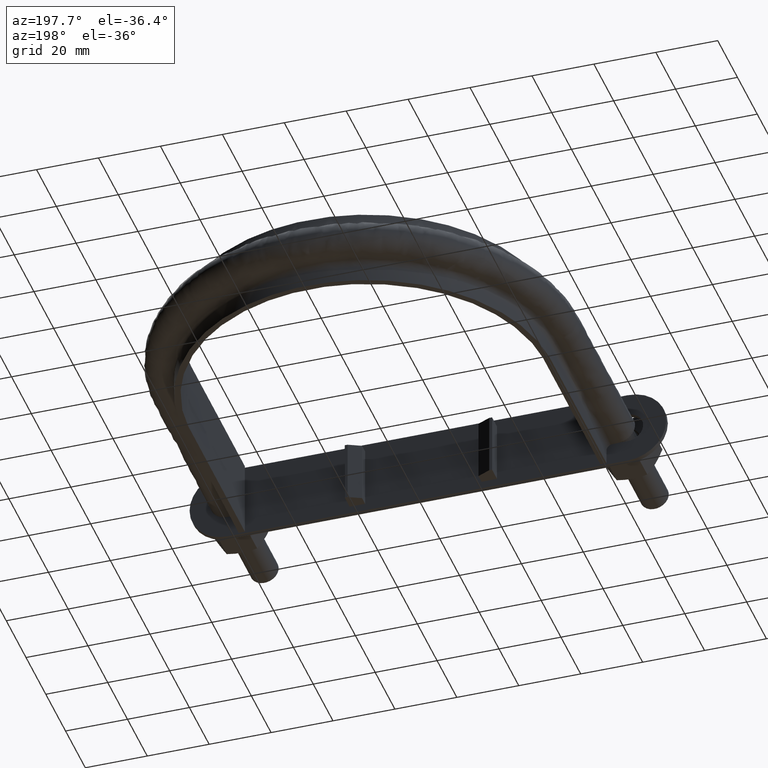
[diagram: clean part render]
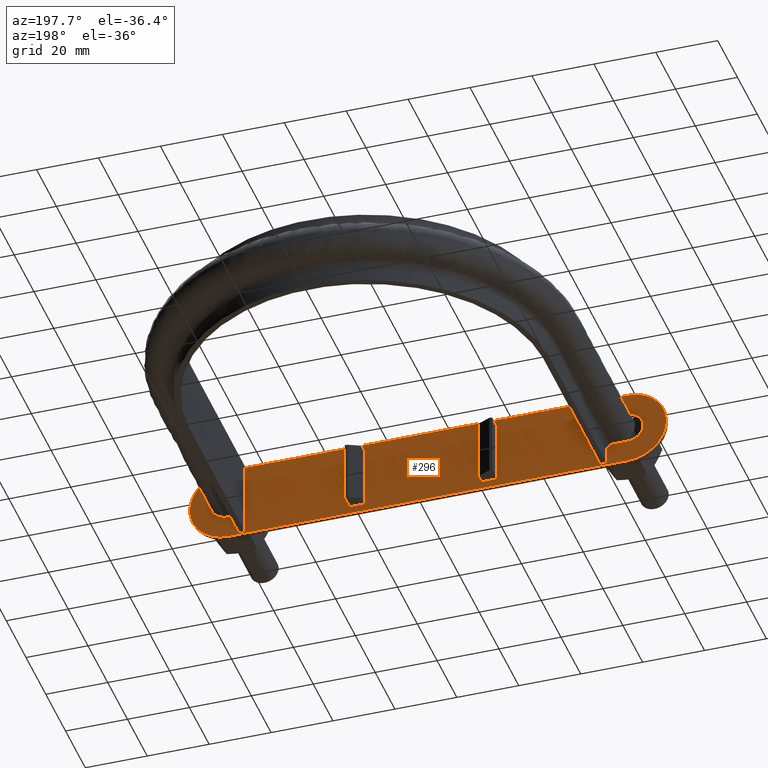
[diagram: same view with one face highlighted and labeled with its STEP entity id]
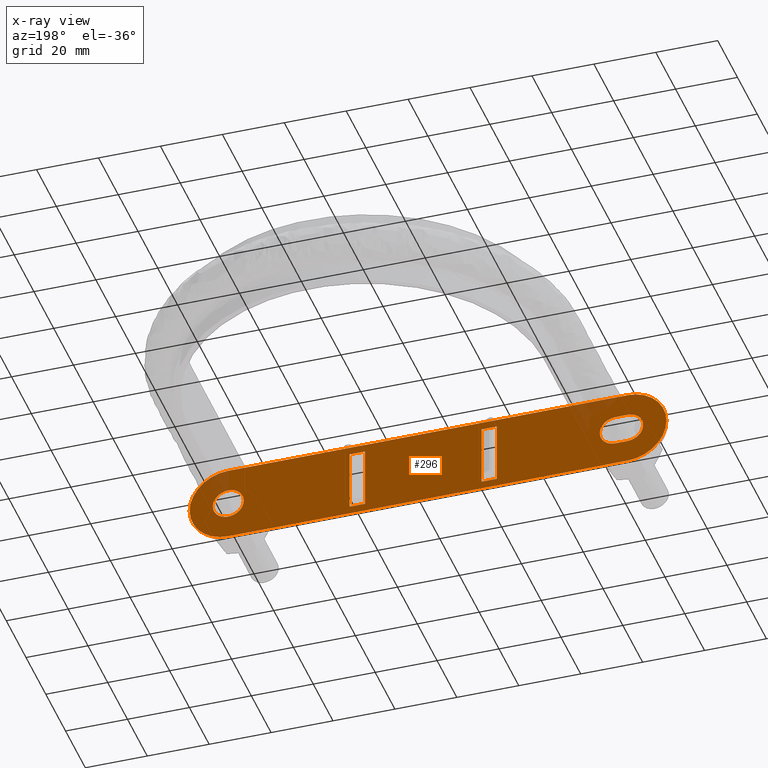
[diagram: x-ray of the same camera — body ghosted, the highlighted face saturated]
A machine part, auxiliary view. The second image highlights one B-rep face of the part: STEP entity #296.
The next image is the same camera in x-ray: the body ghosted, the highlighted face saturated — about 4% of this face is hidden behind the body in this view.
In plain terms, the highlighted planar face has unit normal (0, 1, 0).
Its self-contained STEP definition (entity closure, byte-faithful):
#296 = ADVANCED_FACE( '', ( #445, #446, #447, #448, #449 ), #450, .T. );
#445 = FACE_OUTER_BOUND( '', #1352, .T. );
#446 = FACE_BOUND( '', #1353, .T. );
#447 = FACE_BOUND( '', #1354, .T. );
#448 = FACE_BOUND( '', #1355, .T. );
#449 = FACE_BOUND( '', #1356, .T. );
#450 = PLANE( '', #1357 );
#1352 = EDGE_LOOP( '', ( #1726, #1727, #1728, #1729, #1730, #1731 ) );
#1353 = EDGE_LOOP( '', ( #1732, #1733, #1734, #1735 ) );
#1354 = EDGE_LOOP( '', ( #1736 ) );
#1355 = EDGE_LOOP( '', ( #1737, #1738, #1739, #1740 ) );
#1356 = EDGE_LOOP( '', ( #1741, #1742, #1743, #1744 ) );
#1357 = AXIS2_PLACEMENT_3D( '', #1745, #1746, #1747 );
#1726 = ORIENTED_EDGE( '', *, *, #2405, .T. );
#1727 = ORIENTED_EDGE( '', *, *, #2406, .T. );
#1728 = ORIENTED_EDGE( '', *, *, #2407, .T. );
#1729 = ORIENTED_EDGE( '', *, *, #2408, .T. );
#1730 = ORIENTED_EDGE( '', *, *, #2409, .T. );
#1731 = ORIENTED_EDGE( '', *, *, #2410, .T. );
#1732 = ORIENTED_EDGE( '', *, *, #2411, .T. );
#1733 = ORIENTED_EDGE( '', *, *, #2412, .T. );
#1734 = ORIENTED_EDGE( '', *, *, #2413, .F. );
#1735 = ORIENTED_EDGE( '', *, *, #2414, .F. );
#1736 = ORIENTED_EDGE( '', *, *, #2415, .F. );
#1737 = ORIENTED_EDGE( '', *, *, #2416, .F. );
#1738 = ORIENTED_EDGE( '', *, *, #2417, .F. );
#1739 = ORIENTED_EDGE( '', *, *, #2418, .F. );
#1740 = ORIENTED_EDGE( '', *, *, #2419, .F. );
#1741 = ORIENTED_EDGE( '', *, *, #2420, .F. );
#1742 = ORIENTED_EDGE( '', *, *, #2421, .T. );
#1743 = ORIENTED_EDGE( '', *, *, #2422, .T. );
#1744 = ORIENTED_EDGE( '', *, *, #2423, .F. );
#1745 = CARTESIAN_POINT( '', ( -66.0000000000000, 36.6000000000000, 6.64906957327150E-010 ) );
#1746 = DIRECTION( '', ( 1.34262804649995E-033, 1.00000000000000, 5.34725563500670E-016 ) );
#1747 = DIRECTION( '', ( 1.00000000000000, -1.71056941445901E-049, -2.51087312473002E-018 ) );
#2405 = EDGE_CURVE( '', #2671, #2672, #2673, .T. );
#2406 = EDGE_CURVE( '', #2672, #2674, #2675, .T. );
#2407 = EDGE_CURVE( '', #2674, #2676, #2677, .T. );
#2408 = EDGE_CURVE( '', #2676, #2678, #2679, .T. );
#2409 = EDGE_CURVE( '', #2678, #2680, #2681, .T. );
#2410 = EDGE_CURVE( '', #2680, #2671, #2682, .T. );
#2411 = EDGE_CURVE( '', #2683, #2684, #2685, .T. );
#2412 = EDGE_CURVE( '', #2684, #2686, #2687, .T. );
#2413 = EDGE_CURVE( '', #2688, #2686, #2689, .T. );
#2414 = EDGE_CURVE( '', #2683, #2688, #2690, .T. );
#2415 = EDGE_CURVE( '', #2691, #2691, #2692, .T. );
#2416 = EDGE_CURVE( '', #2693, #2694, #2695, .T. );
#2417 = EDGE_CURVE( '', #2696, #2693, #2697, .T. );
#2418 = EDGE_CURVE( '', #2698, #2696, #2699, .T. );
#2419 = EDGE_CURVE( '', #2694, #2698, #2700, .T. );
#2420 = EDGE_CURVE( '', #2701, #2702, #2703, .T. );
#2421 = EDGE_CURVE( '', #2701, #2704, #2705, .T. );
#2422 = EDGE_CURVE( '', #2704, #2706, #2707, .T. );
#2423 = EDGE_CURVE( '', #2702, #2706, #2708, .T. );
#2671 = VERTEX_POINT( '', #3305 );
#2672 = VERTEX_POINT( '', #3306 );
#2673 = CIRCLE( '', #3307, 12.5000000000000 );
#2674 = VERTEX_POINT( '', #3308 );
#2675 = LINE( '', #3309, #3310 );
#2676 = VERTEX_POINT( '', #3311 );
#2677 = CIRCLE( '', #3312, 12.5000000000000 );
#2678 = VERTEX_POINT( '', #3313 );
#2679 = CIRCLE( '', #3314, 12.5000000000000 );
#2680 = VERTEX_POINT( '', #3315 );
#2681 = LINE( '', #3316, #3317 );
#2682 = CIRCLE( '', #3318, 12.5000000000000 );
#2683 = VERTEX_POINT( '', #3319 );
#2684 = VERTEX_POINT( '', #3320 );
#2685 = LINE( '', #3321, #3322 );
#2686 = VERTEX_POINT( '', #3323 );
#2687 = LINE( '', #3324, #3325 );
#2688 = VERTEX_POINT( '', #3326 );
#2689 = LINE( '', #3327, #3328 );
#2690 = LINE( '', #3329, #3330 );
#2691 = VERTEX_POINT( '', #3331 );
#2692 = CIRCLE( '', #3332, 5.00000000000000 );
#2693 = VERTEX_POINT( '', #3333 );
#2694 = VERTEX_POINT( '', #3334 );
#2695 = CIRCLE( '', #3335, 5.00000000000000 );
#2696 = VERTEX_POINT( '', #3336 );
#2697 = LINE( '', #3337, #3338 );
#2698 = VERTEX_POINT( '', #3339 );
#2699 = CIRCLE( '', #3340, 5.00000000000000 );
#2700 = LINE( '', #3341, #3342 );
#2701 = VERTEX_POINT( '', #3343 );
#2702 = VERTEX_POINT( '', #3344 );
#2703 = LINE( '', #3345, #3346 );
#2704 = VERTEX_POINT( '', #3347 );
#2705 = LINE( '', #3348, #3349 );
#2706 = VERTEX_POINT( '', #3350 );
#2707 = LINE( '', #3351, #3352 );
#2708 = LINE( '', #3353, #3354 );
#3305 = CARTESIAN_POINT( '', ( -78.5000000000000, 36.6000000000000, 7.90839555010405E-010 ) );
#3306 = CARTESIAN_POINT( '', ( -65.9999999998741, 36.6000000000000, 12.5000000006649 ) );
#3307 = AXIS2_PLACEMENT_3D( '', #3919, #3920, #3921 );
#3308 = CARTESIAN_POINT( '', ( 63.0000000001259, 36.6000000000000, 12.4999999993653 ) );
#3309 = CARTESIAN_POINT( '', ( -65.9999999998741, 36.6000000000000, 12.5000000006649 ) );
#3310 = VECTOR( '', #3922, 1000.00000000000 );
#3311 = CARTESIAN_POINT( '', ( 75.5000000000000, 36.6000000000000, -7.60610774307803E-010 ) );
#3312 = AXIS2_PLACEMENT_3D( '', #3923, #3924, #3925 );
#3313 = CARTESIAN_POINT( '', ( 62.9999999998741, 36.6000000000000, -12.5000000006347 ) );
#3314 = AXIS2_PLACEMENT_3D( '', #3926, #3927, #3928 );
#3315 = CARTESIAN_POINT( '', ( -66.0000000001260, 36.6000000000000, -12.4999999993351 ) );
#3316 = CARTESIAN_POINT( '', ( 62.9999999998740, 36.6000000000000, -12.5000000006347 ) );
#3317 = VECTOR( '', #3929, 1000.00000000000 );
#3318 = AXIS2_PLACEMENT_3D( '', #3930, #3931, #3932 );
#3319 = CARTESIAN_POINT( '', ( -23.8000000001008, 36.6000000000000, -9.99999999976023 ) );
#3320 = CARTESIAN_POINT( '', ( -18.8000000001008, 36.6000000000000, -9.99999999981060 ) );
#3321 = CARTESIAN_POINT( '', ( -23.8000000001008, 36.6000000000000, -9.99999999976023 ) );
#3322 = VECTOR( '', #3933, 1000.00000000000 );
#3323 = CARTESIAN_POINT( '', ( -18.7999999998993, 36.6000000000000, 10.0000000001894 ) );
#3324 = CARTESIAN_POINT( '', ( -18.8000000001008, 36.6000000000000, -9.99999999981060 ) );
#3325 = VECTOR( '', #3934, 1000.00000000000 );
#3326 = CARTESIAN_POINT( '', ( -23.7999999998993, 36.6000000000000, 10.0000000002398 ) );
#3327 = CARTESIAN_POINT( '', ( -23.7999999998993, 36.6000000000000, 10.0000000002398 ) );
#3328 = VECTOR( '', #3935, 1000.00000000000 );
#3329 = CARTESIAN_POINT( '', ( -23.8000000001008, 36.6000000000000, -9.99999999976023 ) );
#3330 = VECTOR( '', #3936, 1000.00000000000 );
#3331 = CARTESIAN_POINT( '', ( 68.0000000000000, 36.6000100000000, -6.85051562637198E-010 ) );
#3332 = AXIS2_PLACEMENT_3D( '', #3937, #3938, #3939 );
#3333 = CARTESIAN_POINT( '', ( -66.0000000000504, 36.6000000000000, -4.99999999933509 ) );
#3334 = CARTESIAN_POINT( '', ( -65.9999999999496, 36.6000000000000, 5.00000000066491 ) );
#3335 = AXIS2_PLACEMENT_3D( '', #3940, #3941, #3942 );
#3336 = CARTESIAN_POINT( '', ( -62.0000000000504, 36.6000000000000, -4.99999999937539 ) );
#3337 = CARTESIAN_POINT( '', ( -66.0000000000504, 36.6000000000000, -4.99999999933509 ) );
#3338 = VECTOR( '', #3943, 1000.00000000000 );
#3339 = CARTESIAN_POINT( '', ( -61.9999999999496, 36.6000000000000, 5.00000000062461 ) );
#3340 = AXIS2_PLACEMENT_3D( '', #3944, #3945, #3946 );
#3341 = CARTESIAN_POINT( '', ( -61.9999999999496, 36.6000000000000, 5.00000000062461 ) );
#3342 = VECTOR( '', #3947, 1000.00000000000 );
#3343 = CARTESIAN_POINT( '', ( 18.7999999998993, 36.6000000000000, -10.0000000001894 ) );
#3344 = CARTESIAN_POINT( '', ( 18.8000000001007, 36.6000000000000, 9.99999999981060 ) );
#3345 = CARTESIAN_POINT( '', ( 18.7999999998993, 36.6000000000000, -10.0000000001894 ) );
#3346 = VECTOR( '', #3948, 1000.00000000000 );
#3347 = CARTESIAN_POINT( '', ( 23.7999999998993, 36.6000000000000, -10.0000000002398 ) );
#3348 = CARTESIAN_POINT( '', ( 18.7999999998993, 36.6000000000000, -10.0000000001894 ) );
#3349 = VECTOR( '', #3949, 1000.00000000000 );
#3350 = CARTESIAN_POINT( '', ( 23.8000000001007, 36.6000000000000, 9.99999999976023 ) );
#3351 = CARTESIAN_POINT( '', ( 23.7999999998993, 36.6000000000000, -10.0000000002398 ) );
#3352 = VECTOR( '', #3950, 1000.00000000000 );
#3353 = CARTESIAN_POINT( '', ( 18.8000000001008, 36.6000000000000, 9.99999999981060 ) );
#3354 = VECTOR( '', #3951, 1000.00000000000 );
#3919 = CARTESIAN_POINT( '', ( -66.0000000000000, 36.6000000000000, 6.64906957327150E-010 ) );
#3920 = DIRECTION( '', ( 2.51087312473002E-018, 1.00000000000000, 5.34725563500670E-016 ) );
#3921 = DIRECTION( '', ( -1.00000000000000, 2.51087311934309E-018, 1.00741914810262E-011 ) );
#3922 = DIRECTION( '', ( 1.00000000000000, -2.51087311934302E-018, -1.00743302589043E-011 ) );
#3923 = CARTESIAN_POINT( '', ( 63.0000000000000, 36.6000000000000, -6.34681646071500E-010 ) );
#3924 = DIRECTION( '', ( 2.51087312473002E-018, 1.00000000000000, 5.34725563500671E-016 ) );
#3925 = DIRECTION( '', ( 1.00743302589043E-011, -5.34725563500696E-016, 1.00000000000000 ) );
#3926 = CARTESIAN_POINT( '', ( 63.0000000000000, 36.6000000000000, -6.34678176624548E-010 ) );
#3927 = DIRECTION( '', ( 2.51087312473002E-018, 1.00000000000000, 5.34725563500670E-016 ) );
#3928 = DIRECTION( '', ( 1.00000000000000, -2.51087311934309E-018, -1.00741914810262E-011 ) );
#3929 = DIRECTION( '', ( -1.00000000000000, 2.51087311934302E-018, 1.00743302589043E-011 ) );
#3930 = CARTESIAN_POINT( '', ( -66.0000000000000, 36.6000000000000, 6.64910426774102E-010 ) );
#3931 = DIRECTION( '', ( 2.51087312473002E-018, 1.00000000000000, 5.34725563500671E-016 ) );
#3932 = DIRECTION( '', ( -1.00743302589043E-011, 5.34725563500696E-016, -1.00000000000000 ) );
#3933 = DIRECTION( '', ( 1.00000000000000, -2.51087311934302E-018, -1.00743302589043E-011 ) );
#3934 = DIRECTION( '', ( 1.00742030025083E-011, -2.91483712562017E-016, 1.00000000000000 ) );
#3935 = DIRECTION( '', ( 1.00000000000000, -2.51087311934302E-018, -1.00743302589043E-011 ) );
#3936 = DIRECTION( '', ( 1.00742030025083E-011, -2.91483712562017E-016, 1.00000000000000 ) );
#3937 = CARTESIAN_POINT( '', ( 63.0000000000000, 36.6000100000000, -6.34679911342677E-010 ) );
#3938 = DIRECTION( '', ( 2.51087312473002E-018, 1.00000000000000, 5.34725563500670E-016 ) );
#3939 = DIRECTION( '', ( 1.00000000000000, -2.51087311934302E-018, -1.00743302589043E-011 ) );
#3940 = CARTESIAN_POINT( '', ( -66.0000000000000, 36.6000000000000, 6.64908692050626E-010 ) );
#3941 = DIRECTION( '', ( 2.51087312473002E-018, 1.00000000000000, 5.34725563500670E-016 ) );
#3942 = DIRECTION( '', ( -1.00000000000000, 2.51087311934302E-018, 1.00743302589043E-011 ) );
#3943 = DIRECTION( '', ( -1.00000000000000, 2.51087311934302E-018, 1.00743302589043E-011 ) );
#3944 = CARTESIAN_POINT( '', ( -62.0000000000000, 36.6000000000000, 6.24611371015008E-010 ) );
#3945 = DIRECTION( '', ( 2.51087312473002E-018, 1.00000000000000, 5.34725563500670E-016 ) );
#3946 = DIRECTION( '', ( -1.00000000000000, 2.51087311934302E-018, 1.00743302589043E-011 ) );
#3947 = DIRECTION( '', ( 1.00000000000000, -2.51087311934302E-018, -1.00743302589043E-011 ) );
#3948 = DIRECTION( '', ( 1.00742030025083E-011, -2.91483712562017E-016, 1.00000000000000 ) );
#3949 = DIRECTION( '', ( 1.00000000000000, -2.51087311934302E-018, -1.00743302589043E-011 ) );
#3950 = DIRECTION( '', ( 1.00742030025083E-011, -2.91483712562017E-016, 1.00000000000000 ) );
#3951 = DIRECTION( '', ( 1.00000000000000, -2.51087311934302E-018, -1.00743302589043E-011 ) );